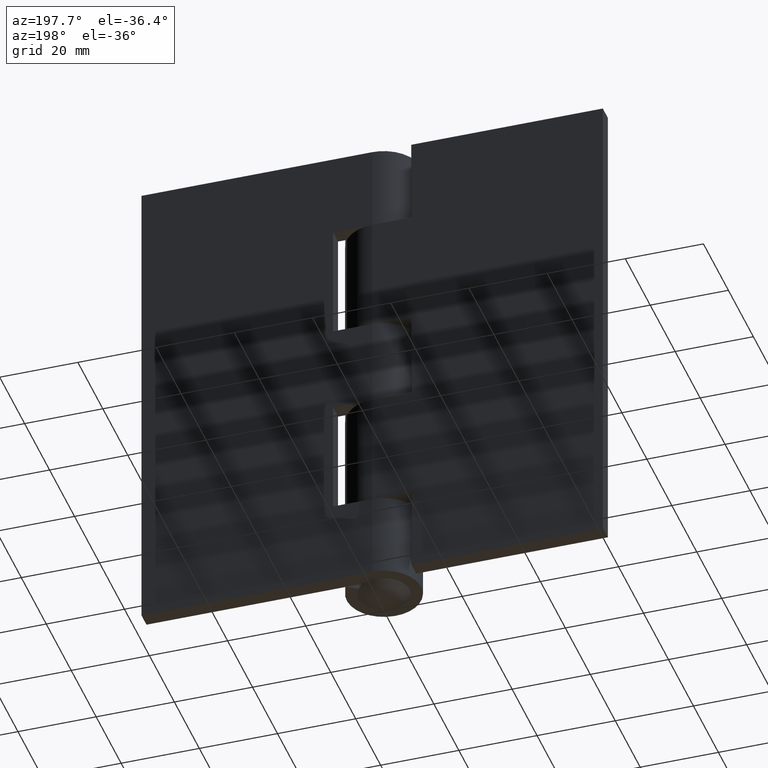
[diagram: clean part render]
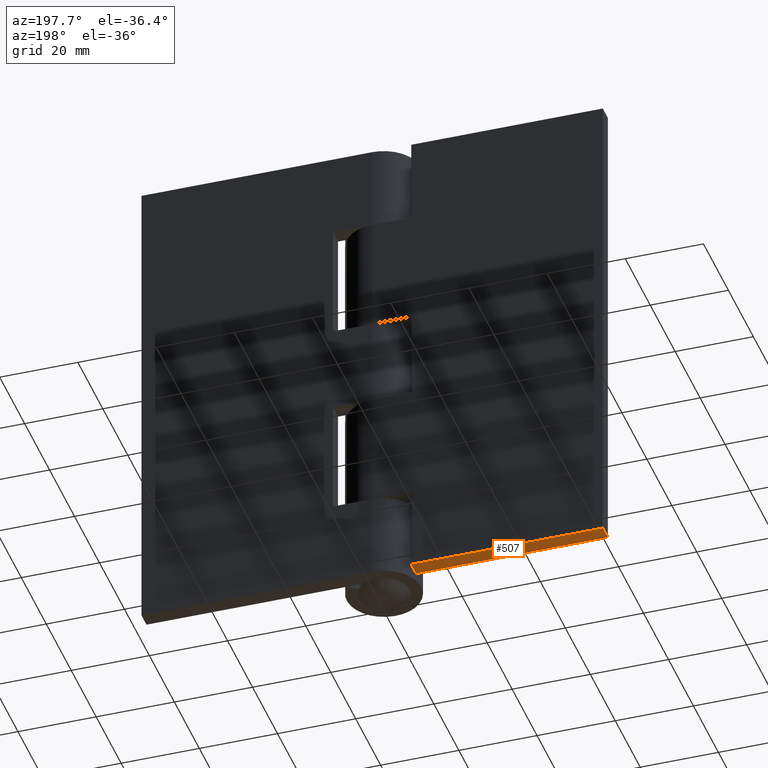
[diagram: same view with one face highlighted and labeled with its STEP entity id]
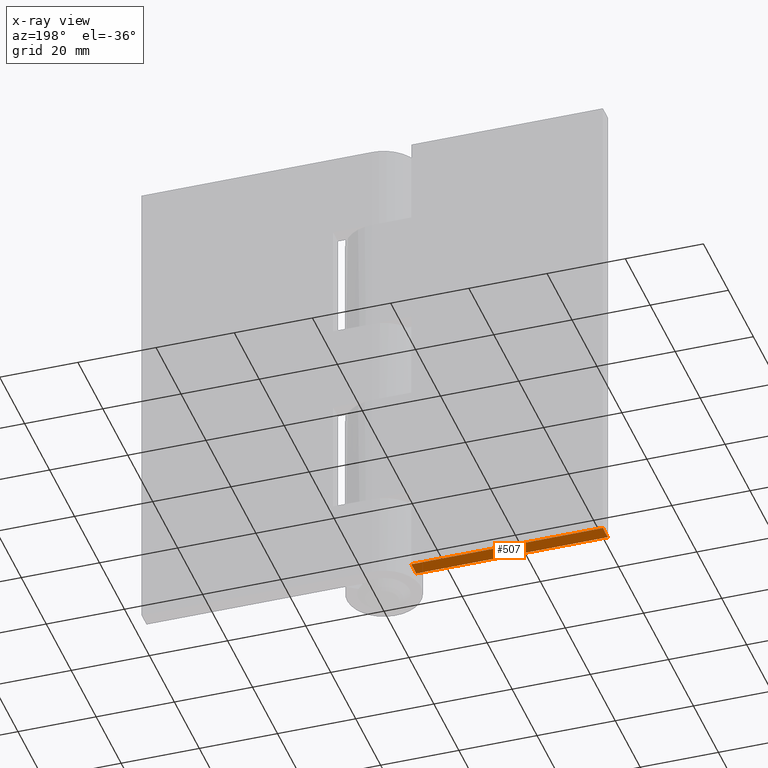
[diagram: x-ray of the same camera — body ghosted, the highlighted face saturated]
A machine part, auxiliary view. The second image highlights one B-rep face of the part: STEP entity #507.
The next image is the same camera in x-ray: the body ghosted, the highlighted face saturated — about 0% of this face is hidden behind the body in this view.
In plain terms, the highlighted face is a freeform B-spline surface patch.
Its self-contained STEP definition (entity closure, byte-faithful):
#227=CARTESIAN_POINT('',(-10.0,5.500000000000000,0.0));
#228=VERTEX_POINT('',#227);
#234=CARTESIAN_POINT('',(-10.0,9.500000000000000,0.0));
#235=VERTEX_POINT('',#234);
#236=CARTESIAN_POINT('',(-10.0,5.500000000000000,0.0));
#237=CARTESIAN_POINT('',(-10.0,9.500000000000000,0.0));
#238=QUASI_UNIFORM_CURVE('',1,(#236,#237),.UNSPECIFIED.,.F.,.U.);
#239=EDGE_CURVE('',#228,#235,#238,.T.);
#437=CARTESIAN_POINT('',(-59.0,9.500000000000000,0.0));
#438=VERTEX_POINT('',#437);
#439=CARTESIAN_POINT('',(-59.0,5.500000000000000,0.0));
#440=VERTEX_POINT('',#439);
#441=CARTESIAN_POINT('',(-59.0,9.500000000000000,0.0));
#442=CARTESIAN_POINT('',(-59.0,5.500000000000000,0.0));
#443=QUASI_UNIFORM_CURVE('',1,(#441,#442),.UNSPECIFIED.,.F.,.U.);
#444=EDGE_CURVE('',#438,#440,#443,.T.);
#488=CARTESIAN_POINT('',(-61.447549905028502,5.300200007752776,0.0));
#489=CARTESIAN_POINT('',(-7.552448780689092,5.300200007752776,0.0));
#490=CARTESIAN_POINT('',(-61.447549905028502,9.699800099535585,0.0));
#491=CARTESIAN_POINT('',(-7.552448780689092,9.699800099535585,0.0));
#492=B_SPLINE_SURFACE_WITH_KNOTS('',1,1,((#488,#490),(#489,#491)),.UNSPECIFIED.,.F.,.F.,.U.,(2,2),(2,2),(0.0,53.895101124339412),(0.0,4.399600091782809),.UNSPECIFIED.);
#493=CARTESIAN_POINT('',(-10.0,9.500000000000000,0.0));
#494=CARTESIAN_POINT('',(-59.0,9.500000000000000,0.0));
#495=QUASI_UNIFORM_CURVE('',1,(#493,#494),.UNSPECIFIED.,.F.,.U.);
#496=EDGE_CURVE('',#235,#438,#495,.T.);
#497=ORIENTED_EDGE('',*,*,#496,.F.);
#498=ORIENTED_EDGE('',*,*,#239,.F.);
#499=CARTESIAN_POINT('',(-59.0,5.500000000000000,0.0));
#500=CARTESIAN_POINT('',(-10.0,5.500000000000000,0.0));
#501=QUASI_UNIFORM_CURVE('',1,(#499,#500),.UNSPECIFIED.,.F.,.U.);
#502=EDGE_CURVE('',#440,#228,#501,.T.);
#503=ORIENTED_EDGE('',*,*,#502,.F.);
#504=ORIENTED_EDGE('',*,*,#444,.F.);
#505=EDGE_LOOP('',(#497,#498,#503,#504));
#506=FACE_OUTER_BOUND('',#505,.T.);
#507=ADVANCED_FACE('',(#506),#492,.F.);